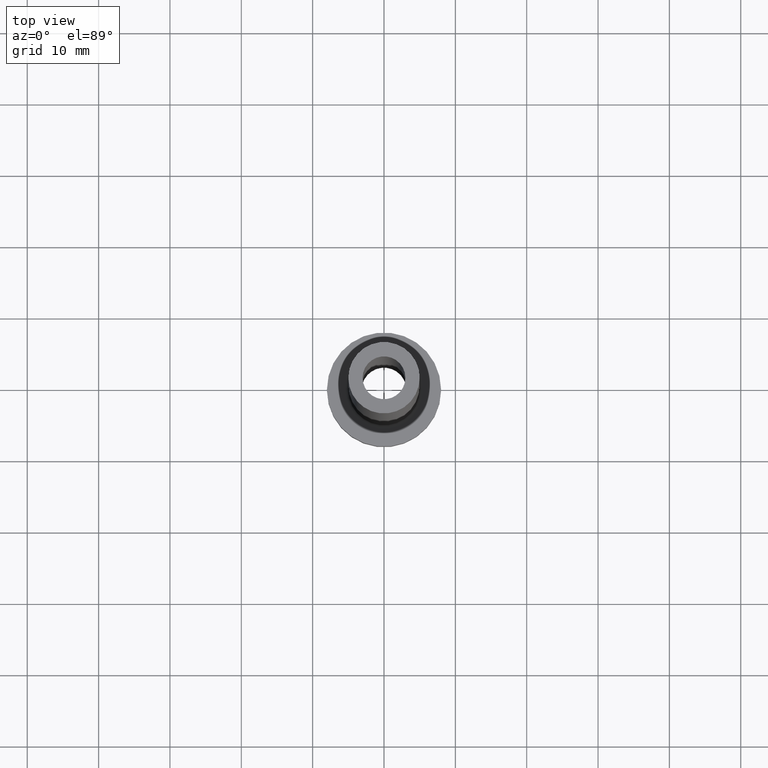
[diagram: clean part render]
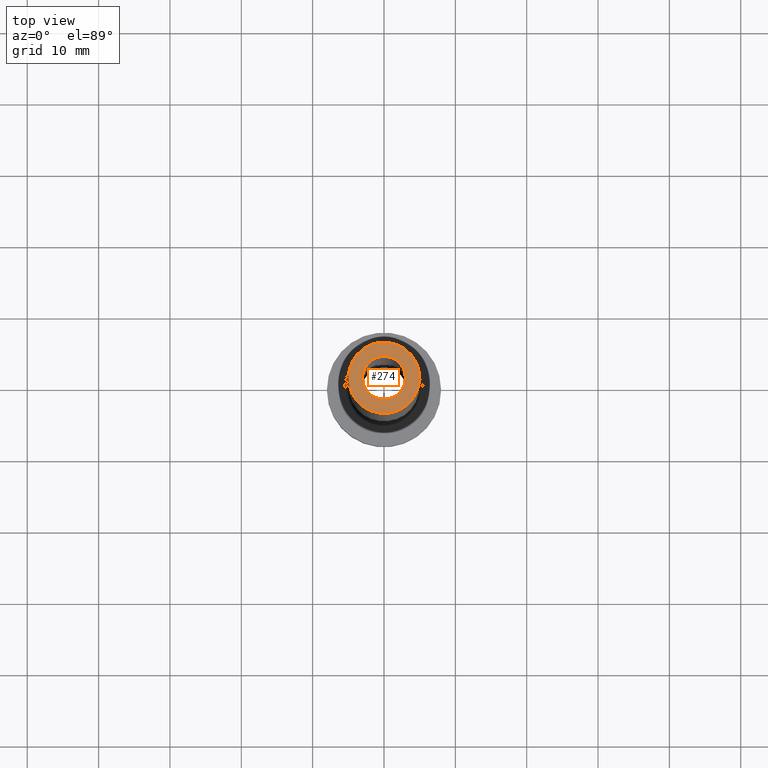
[diagram: same view with one face highlighted and labeled with its STEP entity id]
A machine part, top view. The second image highlights one B-rep face of the part: STEP entity #274.
In plain terms, the highlighted planar face has unit normal (0, 0, 1).
Its self-contained STEP definition (entity closure, byte-faithful):
#14 = CARTESIAN_POINT ( 'NONE',  ( -3.000000000000000444, 0.000000000000000000, 100.0000000000000000 ) ) ;
#20 = DIRECTION ( 'NONE',  ( 1.000000000000000000, 0.000000000000000000, 0.000000000000000000 ) ) ;
#25 = CARTESIAN_POINT ( 'NONE',  ( -5.000000000000000000, 0.000000000000000000, 100.0000000000000000 ) ) ;
#30 = ORIENTED_EDGE ( 'NONE', *, *, #181, .F. ) ;
#42 = AXIS2_PLACEMENT_3D ( 'NONE', #100, #409, #227 ) ;
#46 = EDGE_CURVE ( 'NONE', #273, #340, #54, .T. ) ;
#54 = CIRCLE ( 'NONE', #306, 5.000000000000000000 ) ;
#58 = CARTESIAN_POINT ( 'NONE',  ( 5.000000000000000000, 6.123233995736766282E-16, 100.0000000000000000 ) ) ;
#62 = EDGE_LOOP ( 'NONE', ( #30, #349 ) ) ;
#91 = CIRCLE ( 'NONE', #122, 3.000000000000000444 ) ;
#98 = CARTESIAN_POINT ( 'NONE',  ( 0.000000000000000000, 0.000000000000000000, 100.0000000000000000 ) ) ;
#100 = CARTESIAN_POINT ( 'NONE',  ( 0.000000000000000000, 0.000000000000000000, 100.0000000000000000 ) ) ;
#105 = VERTEX_POINT ( 'NONE', #14 ) ;
#122 = AXIS2_PLACEMENT_3D ( 'NONE', #259, #220, #20 ) ;
#123 = DIRECTION ( 'NONE',  ( 0.000000000000000000, 0.000000000000000000, 1.000000000000000000 ) ) ;
#154 = CIRCLE ( 'NONE', #330, 5.000000000000000000 ) ;
#170 = VERTEX_POINT ( 'NONE', #366 ) ;
#175 = EDGE_CURVE ( 'NONE', #170, #105, #91, .T. ) ;
#179 = DIRECTION ( 'NONE',  ( 0.000000000000000000, 0.000000000000000000, 1.000000000000000000 ) ) ;
#181 = EDGE_CURVE ( 'NONE', #105, #170, #387, .T. ) ;
#194 = CARTESIAN_POINT ( 'NONE',  ( 0.000000000000000000, 0.000000000000000000, 100.0000000000000000 ) ) ;
#199 = FACE_BOUND ( 'NONE', #62, .T. ) ;
#213 = EDGE_LOOP ( 'NONE', ( #334, #373 ) ) ;
#220 = DIRECTION ( 'NONE',  ( 0.000000000000000000, 0.000000000000000000, 1.000000000000000000 ) ) ;
#227 = DIRECTION ( 'NONE',  ( 1.000000000000000000, 0.000000000000000000, -0.000000000000000000 ) ) ;
#230 = DIRECTION ( 'NONE',  ( 0.000000000000000000, 0.000000000000000000, 1.000000000000000000 ) ) ;
#234 = DIRECTION ( 'NONE',  ( 1.000000000000000000, 0.000000000000000000, 0.000000000000000000 ) ) ;
#254 = EDGE_CURVE ( 'NONE', #340, #273, #154, .T. ) ;
#259 = CARTESIAN_POINT ( 'NONE',  ( 0.000000000000000000, 0.000000000000000000, 100.0000000000000000 ) ) ;
#273 = VERTEX_POINT ( 'NONE', #58 ) ;
#274 = ADVANCED_FACE ( 'NONE', ( #199, #372 ), #339, .T. ) ;
#306 = AXIS2_PLACEMENT_3D ( 'NONE', #428, #179, #314 ) ;
#314 = DIRECTION ( 'NONE',  ( 1.000000000000000000, 0.000000000000000000, 0.000000000000000000 ) ) ;
#330 = AXIS2_PLACEMENT_3D ( 'NONE', #98, #230, #234 ) ;
#334 = ORIENTED_EDGE ( 'NONE', *, *, #254, .T. ) ;
#339 = PLANE ( 'NONE',  #42 ) ;
#340 = VERTEX_POINT ( 'NONE', #25 ) ;
#349 = ORIENTED_EDGE ( 'NONE', *, *, #175, .F. ) ;
#365 = DIRECTION ( 'NONE',  ( 1.000000000000000000, 0.000000000000000000, 0.000000000000000000 ) ) ;
#366 = CARTESIAN_POINT ( 'NONE',  ( 3.000000000000000444, 3.673940397442059868E-16, 100.0000000000000000 ) ) ;
#372 = FACE_OUTER_BOUND ( 'NONE', #213, .T. ) ;
#373 = ORIENTED_EDGE ( 'NONE', *, *, #46, .T. ) ;
#380 = AXIS2_PLACEMENT_3D ( 'NONE', #194, #123, #365 ) ;
#387 = CIRCLE ( 'NONE', #380, 3.000000000000000444 ) ;
#409 = DIRECTION ( 'NONE',  ( 0.000000000000000000, 0.000000000000000000, 1.000000000000000000 ) ) ;
#428 = CARTESIAN_POINT ( 'NONE',  ( 0.000000000000000000, 0.000000000000000000, 100.0000000000000000 ) ) ;